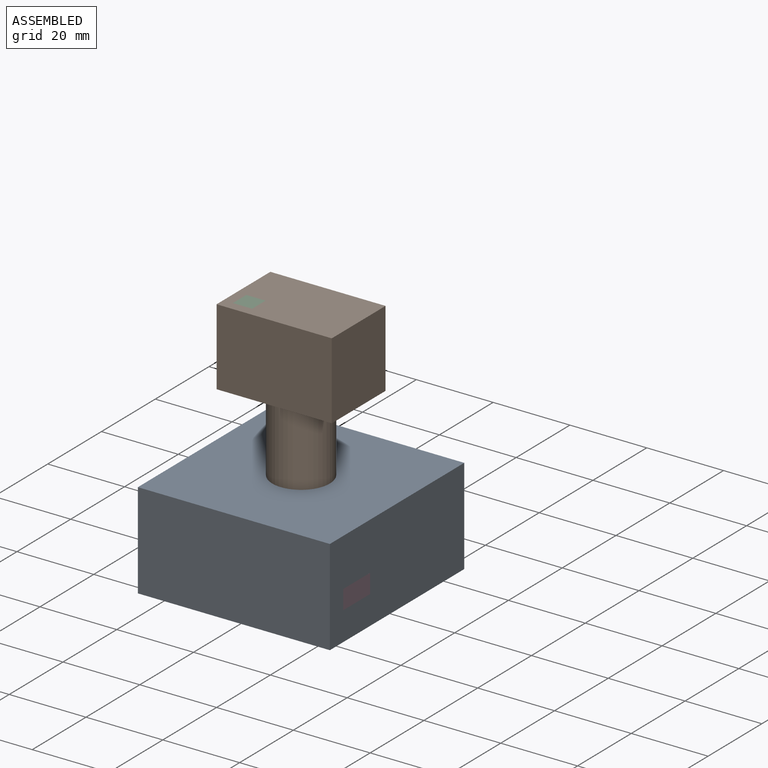
[diagram: assembled view]
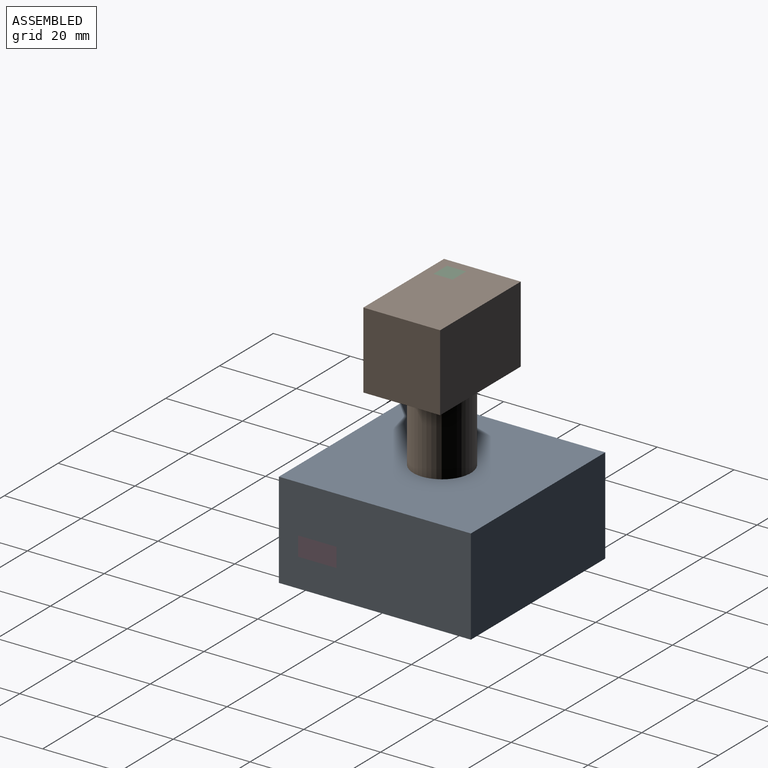
[diagram: assembled view, second angle]
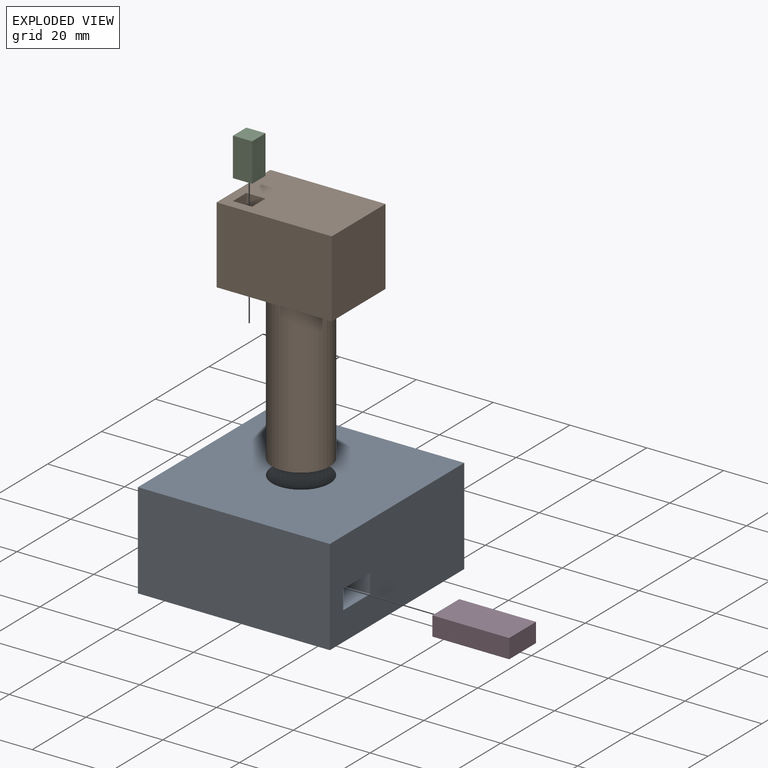
[diagram: exploded view]
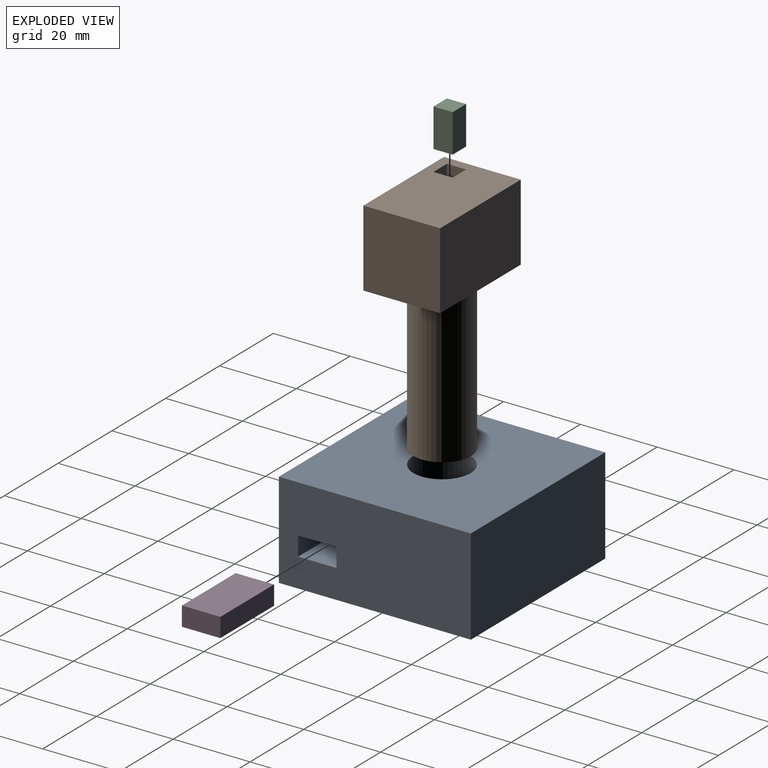
[diagram: exploded view, second angle]
ASSEMBLY  parts=4 mates=3
PART A: 13 faces, bbox 50x50x25 mm
  f0: plane 50x25mm, normal (1,0,0), area 1200mm2, adj f1,f3,f4,f5,f8,f9,f10,f11
  f1: plane 50x25mm, normal (0,1,0), area 1250mm2, adj f0,f2,f4,f5
  f2: plane 50x25mm, normal (-1,0,0), area 1250mm2, adj f1,f3,f4,f5
  f3: plane 50x25mm, normal (0,-1,0), area 1250mm2, adj f0,f2,f4,f5
  f4: plane 50x50mm, normal (0,0,1), area 2323.3mm2, adj f0,f1,f2,f3,f6
  f5: plane 50x50mm, normal (0,0,-1), area 2500mm2, adj f0,f1,f2,f3
  f6: cylinder r=7.5mm len=20mm, axis (0,0,-1), area 942.5mm2, adj f4,f7
  f7: plane 15x15mm, normal (0,0,1), area 176.7mm2, adj f6
  f8: plane 20x5mm, normal (0,-1,0), area 100mm2, adj f0,f9,f11,f12
  f9: plane 20x10mm, normal (0,0,-1), area 200mm2, adj f0,f8,f10,f12
  f10: plane 20x5mm, normal (0,1,0), area 100mm2, adj f0,f9,f11,f12
  f11: plane 20x10mm, normal (0,0,1), area 200mm2, adj f0,f8,f10,f12
  f12: plane 10x5mm, normal (1,0,0), area 50mm2, adj f8,f9,f10,f11
PART B: 13 faces, bbox 30x20x60 mm
  f0: plane 30x20mm, normal (0,0,1), area 575mm2, adj f3,f4,f5,f6,f8,f9,f10,f11
  f1: cylinder r=7.5mm len=40mm, axis (0,0,-1), area 1885mm2, adj f2,f7
  f2: plane 15x15mm, normal (0,0,-1), area 176.7mm2, adj f1
  f3: plane 20x20mm, normal (1,0,0), area 400mm2, adj f0,f4,f6,f7
  f4: plane 30x20mm, normal (0,1,0), area 600mm2, adj f0,f3,f5,f7
  f5: plane 20x20mm, normal (-1,0,0), area 400mm2, adj f0,f4,f6,f7
  f6: plane 30x20mm, normal (0,-1,0), area 600mm2, adj f0,f3,f5,f7
  f7: plane 30x20mm, normal (0,0,-1), area 423.3mm2, adj f1,f3,f4,f5,f6
  f8: plane 10x5mm, normal (-1,0,0), area 50mm2, adj f0,f9,f11,f12
  f9: plane 10x5mm, normal (0,-1,0), area 50mm2, adj f0,f8,f10,f12
  f10: plane 10x5mm, normal (1,0,0), area 50mm2, adj f0,f9,f11,f12
  f11: plane 10x5mm, normal (0,1,0), area 50mm2, adj f0,f8,f10,f12
  f12: plane 5x5mm, normal (0,0,1), area 25mm2, adj f8,f9,f10,f11
PART C: 6 faces, bbox 5x5x10 mm
  f0: plane 10x5mm, normal (1,0,0), area 50mm2, adj f1,f3,f4,f5
  f1: plane 10x5mm, normal (0,1,0), area 50mm2, adj f0,f2,f4,f5
  f2: plane 10x5mm, normal (-1,0,0), area 50mm2, adj f1,f3,f4,f5
  f3: plane 10x5mm, normal (0,-1,0), area 50mm2, adj f0,f2,f4,f5
  f4: plane 5x5mm, normal (0,0,-1), area 25mm2, adj f0,f1,f2,f3
  f5: plane 5x5mm, normal (0,0,1), area 25mm2, adj f0,f1,f2,f3
PART D: 6 faces, bbox 20x10x5 mm
  f0: plane 20x5mm, normal (0,1,0), area 100mm2, adj f1,f3,f4,f5
  f1: plane 20x10mm, normal (0,0,1), area 200mm2, adj f0,f2,f4,f5
  f2: plane 20x5mm, normal (0,-1,0), area 100mm2, adj f1,f3,f4,f5
  f3: plane 20x10mm, normal (0,0,-1), area 200mm2, adj f0,f2,f4,f5
  f4: plane 10x5mm, normal (-1,0,0), area 50mm2, adj f0,f1,f2,f3
  f5: plane 10x5mm, normal (1,0,0), area 50mm2, adj f0,f1,f2,f3
PLACE A at identity fixed
PLACE B at identity
PLACE C at identity
PLACE D at identity
MATE slider A.f0 <-> D.f5  axis (1,0,0) through (25,-20,12.5)mm
MATE revolute A.f6 <-> B.f1  axis (0,0,1) through (0,0,5)mm
MATE fastened B.f0 <-> C.f5  axis (0,0,1) through (-12.5,-2.5,65)mm
